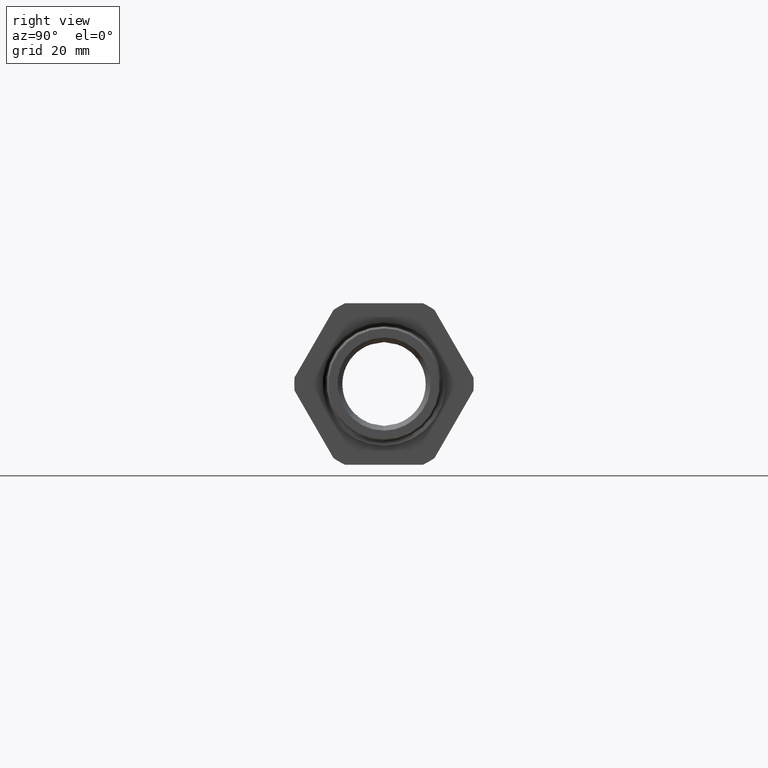
[diagram: clean part render]
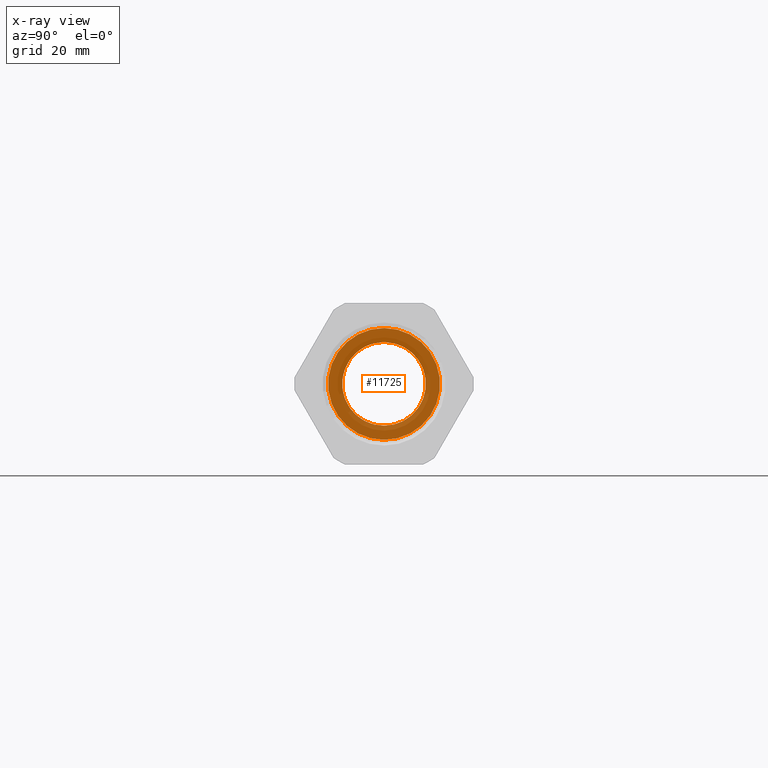
[diagram: x-ray — body ghosted, one internal face saturated and labeled with its STEP entity id]
A machine part, right view, then the same camera in x-ray: the body is ghosted and one INTERNAL B-rep face — a face not visible from any outside direction — is saturated and labeled: STEP entity #11725.
In plain terms, the highlighted planar face has unit normal (-1, 0, 0).
Its self-contained STEP definition (entity closure, byte-faithful):
#8646 = DIRECTION ( 'NONE',  ( 0.0000000000000000000, 0.0000000000000000000, 1.000000000000000000 ) ) ;
#8647 = DIRECTION ( 'NONE',  ( -1.000000000000000000, 0.0000000000000000000, 0.0000000000000000000 ) ) ;
#8648 = CARTESIAN_POINT ( 'NONE',  ( -1.389999999999999900, 0.2750000000000000200, 0.0000000000000000000 ) ) ;
#8649 = AXIS2_PLACEMENT_3D ( 'NONE', #8648, #8647, #8646 ) ;
#8650 = PLANE ( 'NONE',  #8649 ) ;
#8651 = FACE_OUTER_BOUND ( 'NONE', #11775, .T. ) ;
#8656 = FACE_BOUND ( 'NONE', #11726, .T. ) ;
#8739 = CARTESIAN_POINT ( 'NONE',  ( -1.390000000000000100, 4.615693785986374900E-017, 0.3669000000000000600 ) ) ;
#8740 = CARTESIAN_POINT ( 'NONE',  ( -1.390000000000000100, 0.0000000000000000000, -0.3669000000000000600 ) ) ;
#8741 = DIRECTION ( 'NONE',  ( 0.0000000000000000000, 0.0000000000000000000, -1.000000000000000000 ) ) ;
#8742 = DIRECTION ( 'NONE',  ( 1.000000000000000000, 0.0000000000000000000, 0.0000000000000000000 ) ) ;
#8743 = AXIS2_PLACEMENT_3D ( 'NONE', #8750, #8742, #8741 ) ;
#8744 = CIRCLE ( 'NONE', #8743, 0.3669000000000000600 ) ;
#8745 = DIRECTION ( 'NONE',  ( 0.0000000000000000000, 0.0000000000000000000, -1.000000000000000000 ) ) ;
#8746 = DIRECTION ( 'NONE',  ( 1.000000000000000000, 0.0000000000000000000, 0.0000000000000000000 ) ) ;
#8747 = CARTESIAN_POINT ( 'NONE',  ( -1.390000000000000100, 0.0000000000000000000, 0.0000000000000000000 ) ) ;
#8748 = AXIS2_PLACEMENT_3D ( 'NONE', #8747, #8746, #8745 ) ;
#8749 = CIRCLE ( 'NONE', #8748, 0.2750000000000000200 ) ;
#8750 = CARTESIAN_POINT ( 'NONE',  ( -1.390000000000000100, 0.0000000000000000000, 0.0000000000000000000 ) ) ;
#8751 = CARTESIAN_POINT ( 'NONE',  ( -1.390000000000000100, 0.0000000000000000000, -0.2750000000000000200 ) ) ;
#8752 = DIRECTION ( 'NONE',  ( 0.0000000000000000000, 0.0000000000000000000, -1.000000000000000000 ) ) ;
#8753 = DIRECTION ( 'NONE',  ( 1.000000000000000000, 0.0000000000000000000, 0.0000000000000000000 ) ) ;
#8754 = CARTESIAN_POINT ( 'NONE',  ( -1.390000000000000100, 0.0000000000000000000, 0.0000000000000000000 ) ) ;
#8755 = AXIS2_PLACEMENT_3D ( 'NONE', #8754, #8753, #8752 ) ;
#8756 = CIRCLE ( 'NONE', #8755, 0.2750000000000000200 ) ;
#8757 = CARTESIAN_POINT ( 'NONE',  ( -1.390000000000000100, 3.367778697655221300E-017, 0.2750000000000000200 ) ) ;
#8772 = DIRECTION ( 'NONE',  ( 0.0000000000000000000, 0.0000000000000000000, -1.000000000000000000 ) ) ;
#8773 = DIRECTION ( 'NONE',  ( 1.000000000000000000, 0.0000000000000000000, 0.0000000000000000000 ) ) ;
#8774 = CARTESIAN_POINT ( 'NONE',  ( -1.390000000000000100, 0.0000000000000000000, 0.0000000000000000000 ) ) ;
#8775 = AXIS2_PLACEMENT_3D ( 'NONE', #8774, #8773, #8772 ) ;
#8776 = CIRCLE ( 'NONE', #8775, 0.3669000000000000600 ) ;
#11685 = ORIENTED_EDGE ( 'NONE', *, *, #11798, .F. ) ;
#11725 = ADVANCED_FACE ( 'NONE', ( #8656, #8651 ), #8650, .T. ) ;
#11726 = EDGE_LOOP ( 'NONE', ( #11772, #11774 ) ) ;
#11768 = VERTEX_POINT ( 'NONE', #8757 ) ;
#11770 = EDGE_CURVE ( 'NONE', #11768, #11771, #8756, .T. ) ;
#11771 = VERTEX_POINT ( 'NONE', #8751 ) ;
#11772 = ORIENTED_EDGE ( 'NONE', *, *, #11773, .T. ) ;
#11773 = EDGE_CURVE ( 'NONE', #11771, #11768, #8749, .T. ) ;
#11774 = ORIENTED_EDGE ( 'NONE', *, *, #11770, .T. ) ;
#11775 = EDGE_LOOP ( 'NONE', ( #11776, #11685 ) ) ;
#11776 = ORIENTED_EDGE ( 'NONE', *, *, #11779, .F. ) ;
#11779 = EDGE_CURVE ( 'NONE', #11780, #11781, #8744, .T. ) ;
#11780 = VERTEX_POINT ( 'NONE', #8740 ) ;
#11781 = VERTEX_POINT ( 'NONE', #8739 ) ;
#11798 = EDGE_CURVE ( 'NONE', #11781, #11780, #8776, .T. ) ;